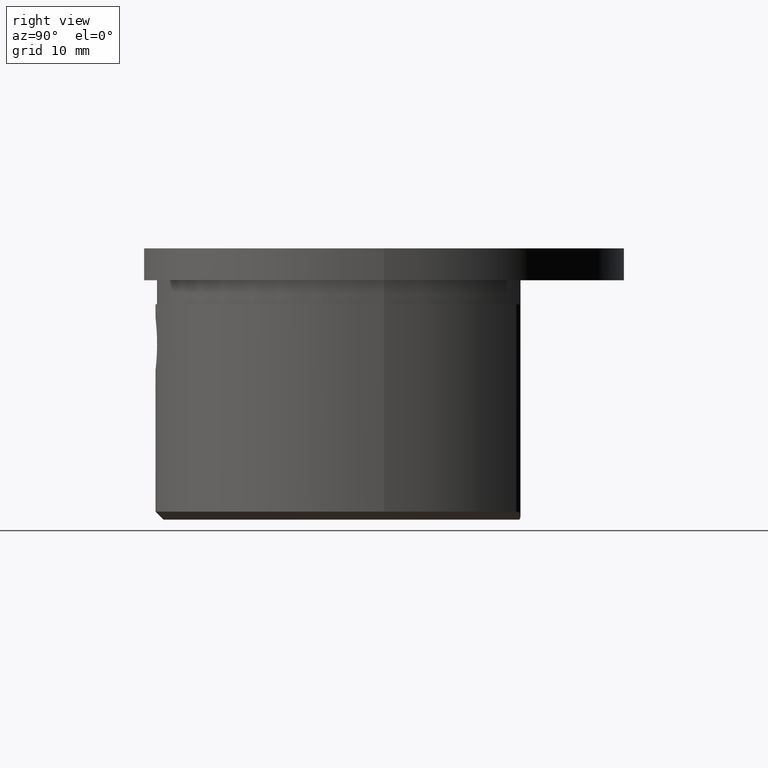
[diagram: clean part render]
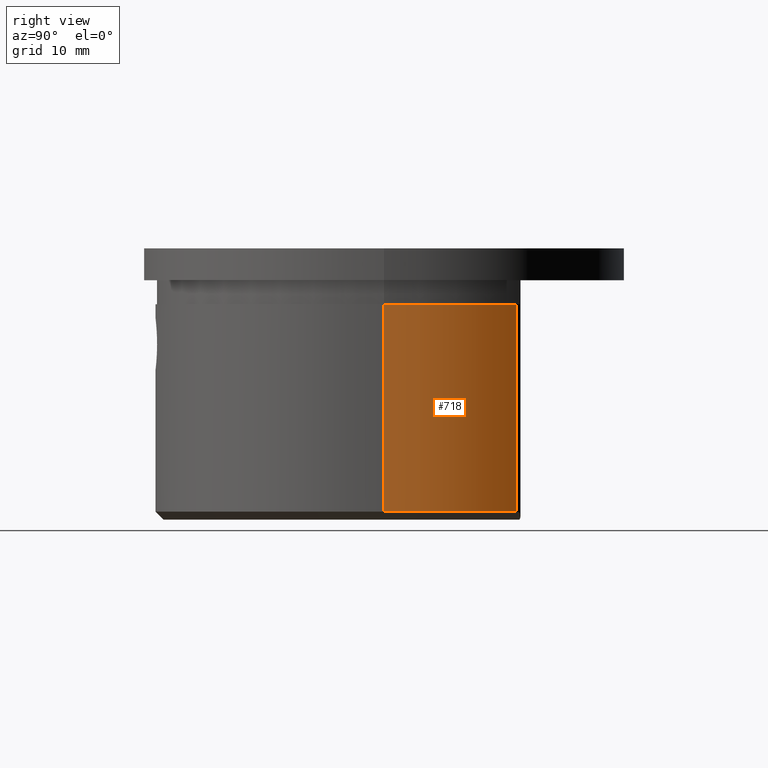
[diagram: same view with one face highlighted and labeled with its STEP entity id]
A machine part, right view. The second image highlights one B-rep face of the part: STEP entity #718.
In plain terms, the highlighted cylindrical surface (partial cylindrical patch) has radius 28.65 mm, axis along (-0, -0, 1).
Its self-contained STEP definition (entity closure, byte-faithful):
#350 = FACE_OUTER_BOUND ( 'NONE', #12342, .T. ) ;
#437 = AXIS2_PLACEMENT_3D ( 'NONE', #17327, #5537, #23138 ) ;
#510 = CARTESIAN_POINT ( 'NONE',  ( 0.000000000000000000, 0.000000000000000000, -3.000000000000002665 ) ) ;
#718 = ADVANCED_FACE ( 'NONE', ( #350 ), #972, .T. ) ;
#972 = CYLINDRICAL_SURFACE ( 'NONE', #437, 28.64999999999999858 ) ;
#1409 = CARTESIAN_POINT ( 'NONE',  ( 28.64999999999999858, 0.000000000000000000, -30.00000000000000000 ) ) ;
#2181 = LINE ( 'NONE', #1409, #10775 ) ;
#2238 = CARTESIAN_POINT ( 'NONE',  ( 23.35768774187729235, 16.59038647388767984, -28.99999999999997868 ) ) ;
#2764 = ORIENTED_EDGE ( 'NONE', *, *, #21879, .F. ) ;
#3159 = DIRECTION ( 'NONE',  ( -1.000000000000000000, 0.000000000000000000, 0.000000000000000000 ) ) ;
#3713 = ORIENTED_EDGE ( 'NONE', *, *, #15208, .T. ) ;
#3784 = AXIS2_PLACEMENT_3D ( 'NONE', #20600, #15138, #3159 ) ;
#3972 = ORIENTED_EDGE ( 'NONE', *, *, #8509, .T. ) ;
#5537 = DIRECTION ( 'NONE',  ( -0.000000000000000000, -0.000000000000000000, 1.000000000000000000 ) ) ;
#5672 = VERTEX_POINT ( 'NONE', #2238 ) ;
#7659 = CARTESIAN_POINT ( 'NONE',  ( 28.64999999999999858, 0.000000000000000000, -28.99999999999997868 ) ) ;
#8509 = EDGE_CURVE ( 'NONE', #16305, #5672, #11514, .T. ) ;
#9372 = DIRECTION ( 'NONE',  ( -0.000000000000000000, -0.000000000000000000, 1.000000000000000000 ) ) ;
#10203 = CARTESIAN_POINT ( 'NONE',  ( 23.35768774187728880, 16.59038647388767629, -3.000000000000001332 ) ) ;
#10775 = VECTOR ( 'NONE', #9372, 1000.000000000000000 ) ;
#11514 = CIRCLE ( 'NONE', #3784, 28.64999999999999858 ) ;
#11795 = VERTEX_POINT ( 'NONE', #10203 ) ;
#12342 = EDGE_LOOP ( 'NONE', ( #2764, #3972, #22860, #3713 ) ) ;
#12458 = EDGE_CURVE ( 'NONE', #5672, #11795, #24405, .T. ) ;
#12911 = CARTESIAN_POINT ( 'NONE',  ( 28.64999999999999858, 0.000000000000000000, -3.000000000000002665 ) ) ;
#13348 = CIRCLE ( 'NONE', #22008, 28.64999999999999858 ) ;
#14126 = DIRECTION ( 'NONE',  ( 0.000000000000000000, 0.000000000000000000, -1.000000000000000000 ) ) ;
#14327 = VECTOR ( 'NONE', #17597, 1000.000000000000000 ) ;
#15138 = DIRECTION ( 'NONE',  ( 0.000000000000000000, 0.000000000000000000, 1.000000000000000000 ) ) ;
#15208 = EDGE_CURVE ( 'NONE', #11795, #20133, #13348, .T. ) ;
#16305 = VERTEX_POINT ( 'NONE', #7659 ) ;
#17327 = CARTESIAN_POINT ( 'NONE',  ( 0.000000000000000000, 0.000000000000000000, -30.00000000000000000 ) ) ;
#17597 = DIRECTION ( 'NONE',  ( -0.000000000000000000, -0.000000000000000000, 1.000000000000000000 ) ) ;
#18221 = DIRECTION ( 'NONE',  ( -1.000000000000000000, 0.000000000000000000, 0.000000000000000000 ) ) ;
#20133 = VERTEX_POINT ( 'NONE', #12911 ) ;
#20600 = CARTESIAN_POINT ( 'NONE',  ( 0.000000000000000000, 0.000000000000000000, -28.99999999999997868 ) ) ;
#21879 = EDGE_CURVE ( 'NONE', #16305, #20133, #2181, .T. ) ;
#22008 = AXIS2_PLACEMENT_3D ( 'NONE', #510, #14126, #18221 ) ;
#22860 = ORIENTED_EDGE ( 'NONE', *, *, #12458, .T. ) ;
#23138 = DIRECTION ( 'NONE',  ( 1.000000000000000000, 0.000000000000000000, 0.000000000000000000 ) ) ;
#23664 = CARTESIAN_POINT ( 'NONE',  ( 23.35768774187729235, 16.59038647388767984, -30.00000000000000000 ) ) ;
#24405 = LINE ( 'NONE', #23664, #14327 ) ;